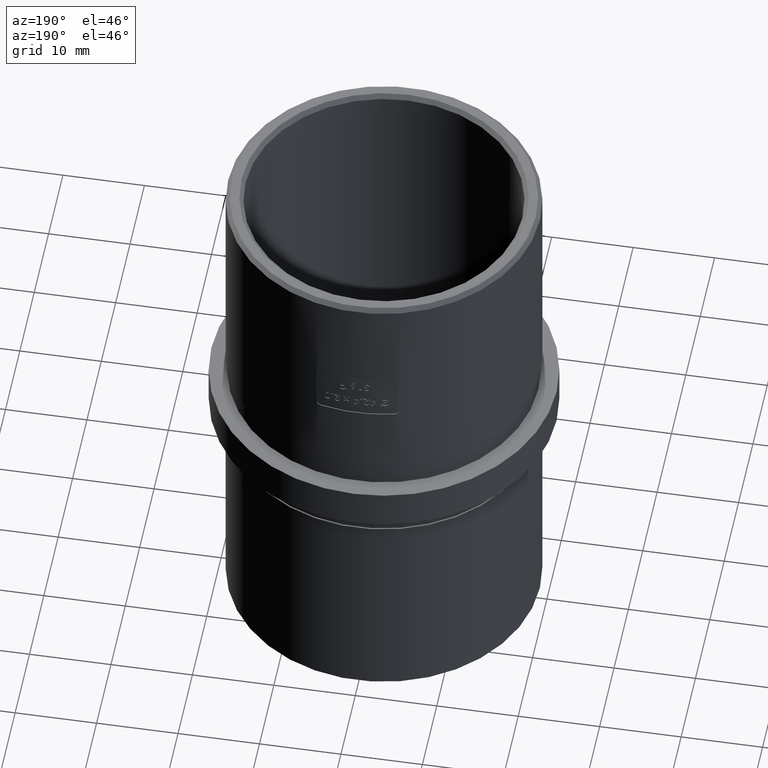
[diagram: clean part render]
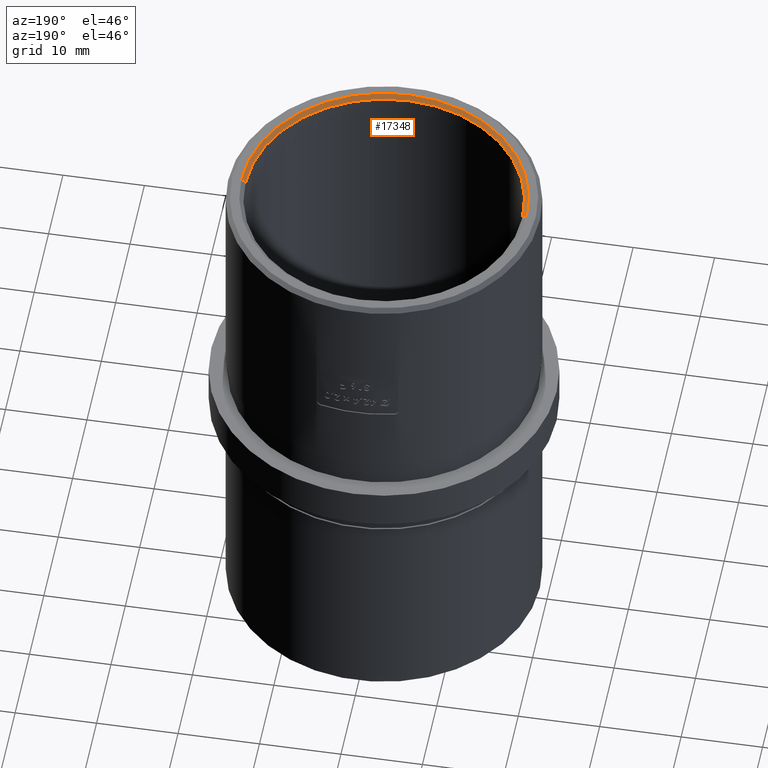
[diagram: same view with one face highlighted and labeled with its STEP entity id]
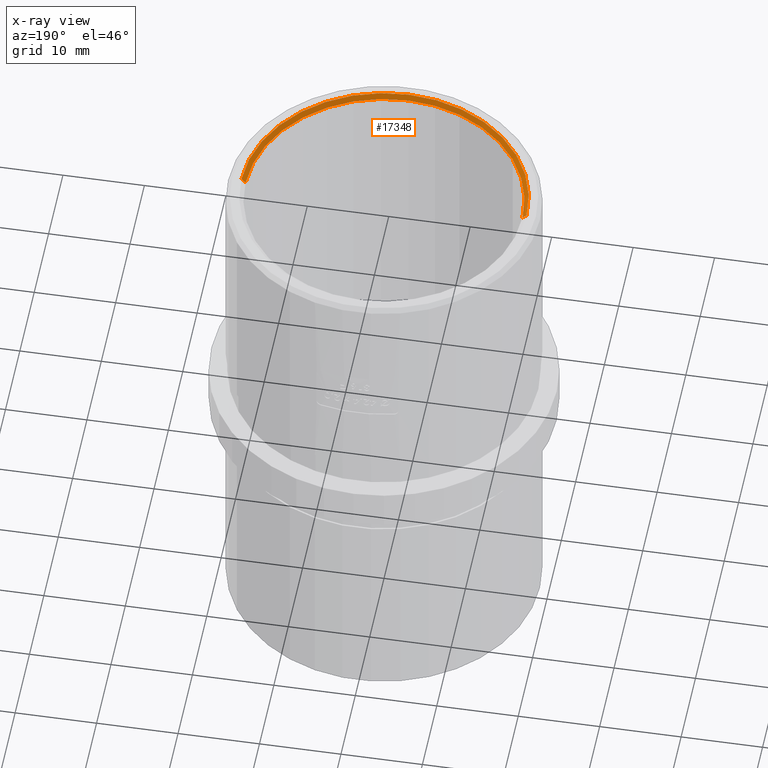
[diagram: x-ray of the same camera — body ghosted, the highlighted face saturated]
A machine part, auxiliary view. The second image highlights one B-rep face of the part: STEP entity #17348.
The next image is the same camera in x-ray: the body ghosted, the highlighted face saturated — about 0% of this face is hidden behind the body in this view.
In plain terms, the highlighted conical surface has half-angle 45 deg.
Its self-contained STEP definition (entity closure, byte-faithful):
#79 = ORIENTED_EDGE ( 'NONE', *, *, #5159, .F. ) ;
#291 = VERTEX_POINT ( 'NONE', #18144 ) ;
#624 = DIRECTION ( 'NONE',  ( 1.000000000000000000, 0.0000000000000000000, 0.0000000000000000000 ) ) ;
#981 = VERTEX_POINT ( 'NONE', #4893 ) ;
#1003 = ORIENTED_EDGE ( 'NONE', *, *, #16982, .T. ) ;
#1035 = ORIENTED_EDGE ( 'NONE', *, *, #5672, .F. ) ;
#1085 = CARTESIAN_POINT ( 'NONE',  ( 0.0000000000000000000, 0.0000000000000000000, 32.50000000000000000 ) ) ;
#1382 = AXIS2_PLACEMENT_3D ( 'NONE', #4849, #16577, #624 ) ;
#2308 = CARTESIAN_POINT ( 'NONE',  ( -17.00000000000000000, 2.081899558550500300E-015, 32.00000000000000000 ) ) ;
#2909 = CIRCLE ( 'NONE', #10446, 17.00000000000000000 ) ;
#3334 = EDGE_CURVE ( 'NONE', #981, #8806, #5243, .T. ) ;
#4849 = CARTESIAN_POINT ( 'NONE',  ( 0.0000000000000000000, 0.0000000000000000000, 32.00000000000000000 ) ) ;
#4893 = CARTESIAN_POINT ( 'NONE',  ( 17.00000000000000000, 0.0000000000000000000, 32.00000000000000000 ) ) ;
#5159 = EDGE_CURVE ( 'NONE', #13504, #981, #2909, .T. ) ;
#5180 = CARTESIAN_POINT ( 'NONE',  ( -17.00000000000000000, 2.081899558550500300E-015, 32.00000000000000000 ) ) ;
#5243 = LINE ( 'NONE', #16680, #13057 ) ;
#5462 = DIRECTION ( 'NONE',  ( 0.7071067811865474600, 0.0000000000000000000, 0.7071067811865474600 ) ) ;
#5672 = EDGE_CURVE ( 'NONE', #8806, #291, #11152, .T. ) ;
#5952 = EDGE_LOOP ( 'NONE', ( #79, #1003, #1035, #8943 ) ) ;
#6348 = CARTESIAN_POINT ( 'NONE',  ( 0.0000000000000000000, 0.0000000000000000000, 32.00000000000000000 ) ) ;
#8329 = DIRECTION ( 'NONE',  ( -0.0000000000000000000, -0.0000000000000000000, -1.000000000000000000 ) ) ;
#8585 = CARTESIAN_POINT ( 'NONE',  ( 17.50000000000000000, 0.0000000000000000000, 32.50000000000000000 ) ) ;
#8806 = VERTEX_POINT ( 'NONE', #8585 ) ;
#8943 = ORIENTED_EDGE ( 'NONE', *, *, #3334, .F. ) ;
#9363 = DIRECTION ( 'NONE',  ( 1.000000000000000000, 0.0000000000000000000, 0.0000000000000000000 ) ) ;
#9423 = DIRECTION ( 'NONE',  ( 0.0000000000000000000, 0.0000000000000000000, 1.000000000000000000 ) ) ;
#10446 = AXIS2_PLACEMENT_3D ( 'NONE', #6348, #9423, #9363 ) ;
#11148 = DIRECTION ( 'NONE',  ( -0.7071067811865474600, 8.659560562354932900E-017, 0.7071067811865474600 ) ) ;
#11152 = CIRCLE ( 'NONE', #18046, 17.50000000000000000 ) ;
#11773 = LINE ( 'NONE', #5180, #12685 ) ;
#12685 = VECTOR ( 'NONE', #11148, 1000.000000000000100 ) ;
#12915 = FACE_OUTER_BOUND ( 'NONE', #5952, .T. ) ;
#13057 = VECTOR ( 'NONE', #5462, 1000.000000000000100 ) ;
#13504 = VERTEX_POINT ( 'NONE', #2308 ) ;
#16577 = DIRECTION ( 'NONE',  ( 0.0000000000000000000, 0.0000000000000000000, 1.000000000000000000 ) ) ;
#16680 = CARTESIAN_POINT ( 'NONE',  ( 17.00000000000000000, 0.0000000000000000000, 32.00000000000000000 ) ) ;
#16982 = EDGE_CURVE ( 'NONE', #13504, #291, #11773, .T. ) ;
#17348 = ADVANCED_FACE ( 'NONE', ( #12915 ), #18617, .F. ) ;
#18046 = AXIS2_PLACEMENT_3D ( 'NONE', #1085, #8329, #18447 ) ;
#18144 = CARTESIAN_POINT ( 'NONE',  ( -17.50000000000000000, 2.143131898507867900E-015, 32.50000000000000000 ) ) ;
#18447 = DIRECTION ( 'NONE',  ( 1.000000000000000000, 0.0000000000000000000, 0.0000000000000000000 ) ) ;
#18617 = CONICAL_SURFACE ( 'NONE', #1382, 17.00000000000000000, 0.7853981633974482800 ) ;